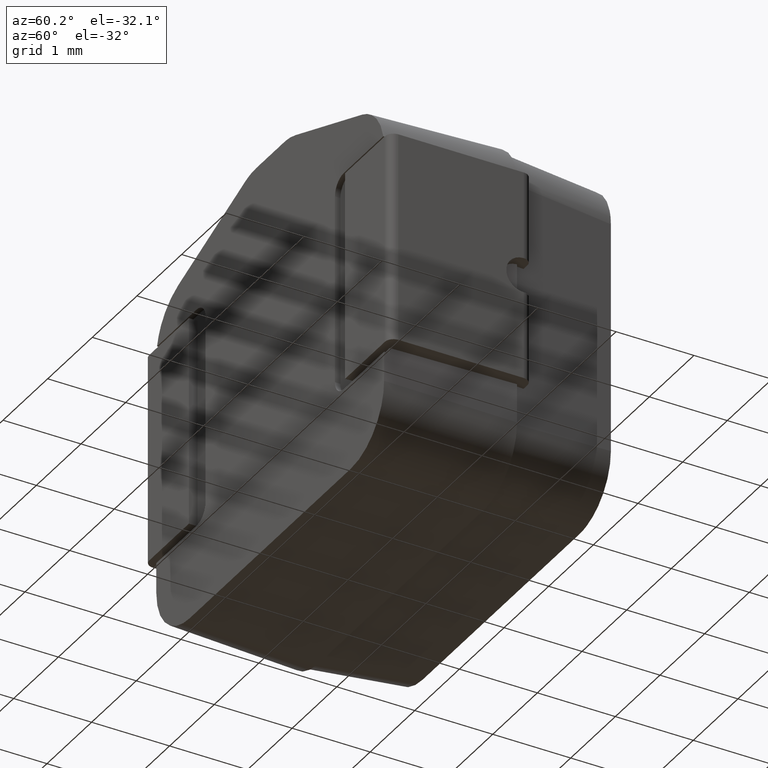
[diagram: clean part render]
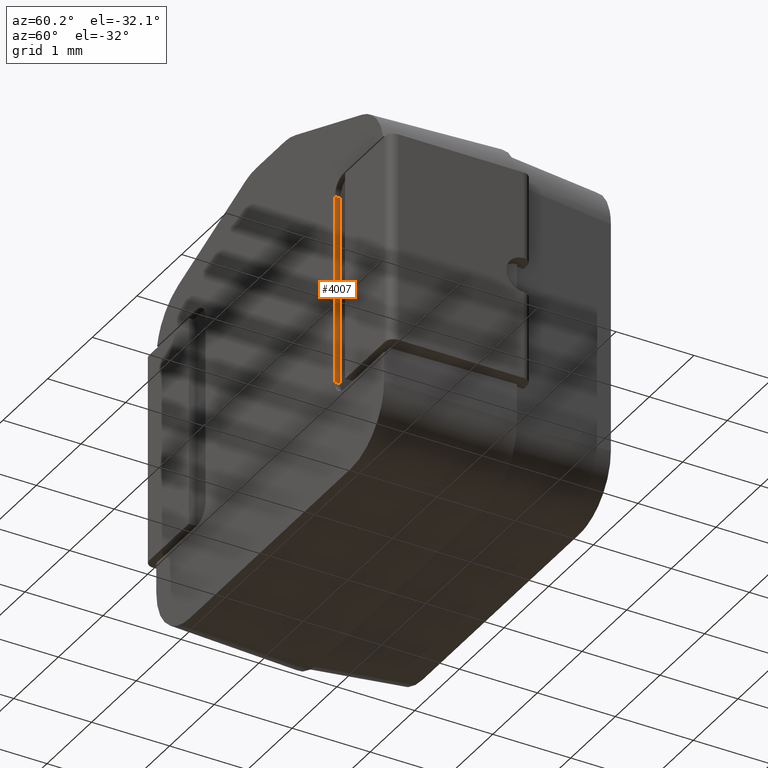
[diagram: same view with one face highlighted and labeled with its STEP entity id]
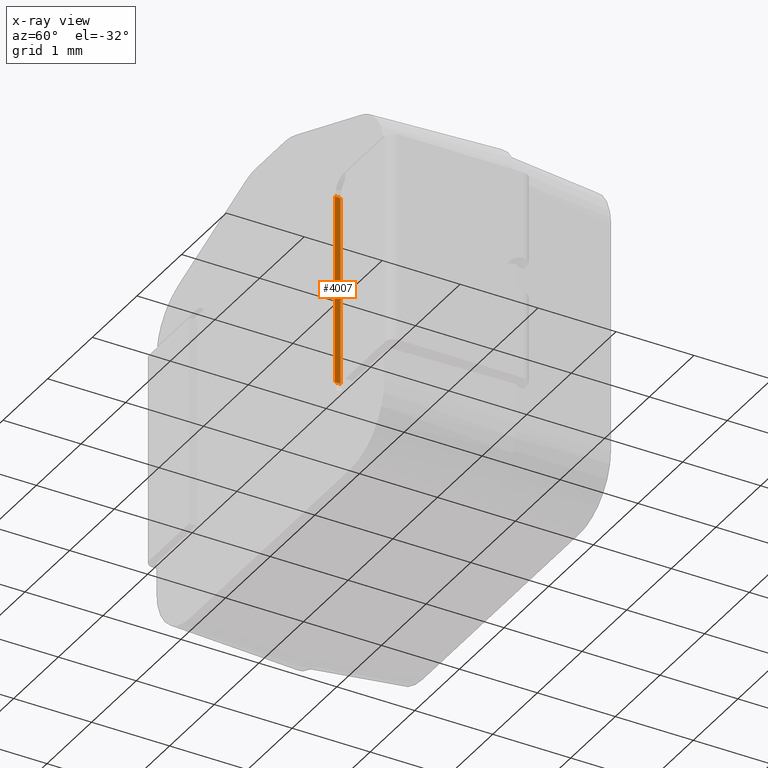
[diagram: x-ray of the same camera — body ghosted, the highlighted face saturated]
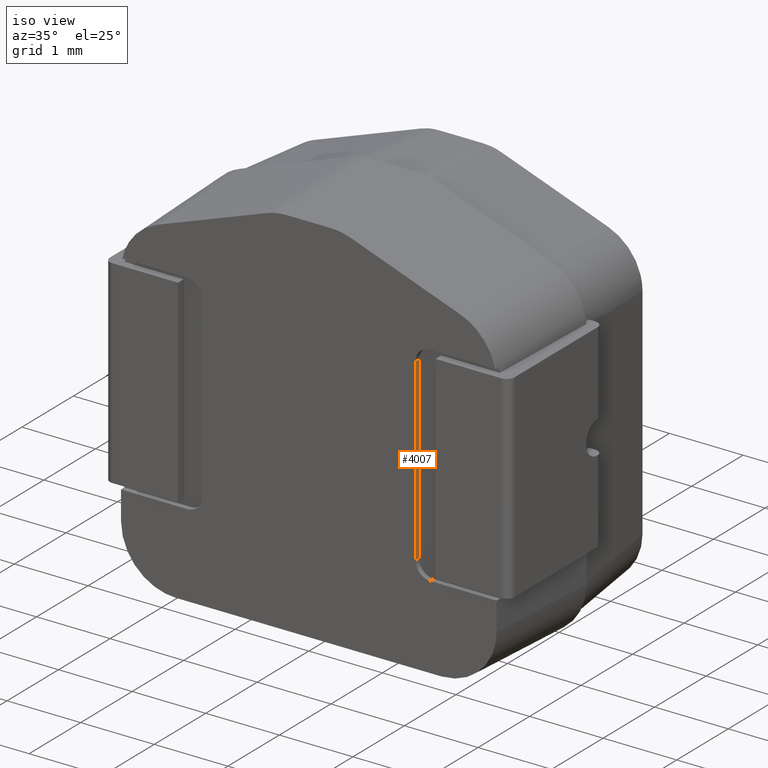
[diagram: same view with one face highlighted and labeled with its STEP entity id]
A machine part, auxiliary view. The second image highlights one B-rep face of the part: STEP entity #4007.
The next image is the same camera in x-ray: the body ghosted, the highlighted face saturated — about 0% of this face is hidden behind the body in this view.
A second angle (iso view) of the same face is appended — the face is thin or edge-on in the first view.
In plain terms, the highlighted planar face has unit normal (-1, 0, 0).
Its self-contained STEP definition (entity closure, byte-faithful):
#329 = DIRECTION ( 'NONE',  ( 1.527045313359865476E-16, 0.0000000000000000000, 1.000000000000000000 ) ) ;
#510 = LINE ( 'NONE', #4593, #5589 ) ;
#528 = LINE ( 'NONE', #1100, #5607 ) ;
#684 = VERTEX_POINT ( 'NONE', #1522 ) ;
#712 = ORIENTED_EDGE ( 'NONE', *, *, #1921, .T. ) ;
#986 = LINE ( 'NONE', #3184, #5217 ) ;
#1100 = CARTESIAN_POINT ( 'NONE',  ( 1.450000000000000400, 0.0000000000000000000, 1.219999999999999973 ) ) ;
#1167 = DIRECTION ( 'NONE',  ( -1.000000000000000000, 0.0000000000000000000, 1.527045313359865476E-16 ) ) ;
#1191 = ORIENTED_EDGE ( 'NONE', *, *, #4339, .F. ) ;
#1522 = CARTESIAN_POINT ( 'NONE',  ( 1.450000000000000400, 0.07000000000000000666, 1.219999999999999973 ) ) ;
#1691 = EDGE_CURVE ( 'NONE', #684, #5250, #528, .T. ) ;
#1758 = FACE_OUTER_BOUND ( 'NONE', #4564, .T. ) ;
#1921 = EDGE_CURVE ( 'NONE', #4919, #2553, #510, .T. ) ;
#2036 = DIRECTION ( 'NONE',  ( 1.527045313359865476E-16, 0.0000000000000000000, 1.000000000000000000 ) ) ;
#2133 = LINE ( 'NONE', #3381, #3181 ) ;
#2345 = ORIENTED_EDGE ( 'NONE', *, *, #4412, .T. ) ;
#2481 = PLANE ( 'NONE',  #3082 ) ;
#2553 = VERTEX_POINT ( 'NONE', #3820 ) ;
#3082 = AXIS2_PLACEMENT_3D ( 'NONE', #3867, #1167, #2036 ) ;
#3181 = VECTOR ( 'NONE', #4763, 1000.000000000000000 ) ;
#3184 = CARTESIAN_POINT ( 'NONE',  ( 1.449999999999999956, 0.07000000000000000666, -1.419999999999999929 ) ) ;
#3381 = CARTESIAN_POINT ( 'NONE',  ( 1.449999999999999956, 0.0000000000000000000, -1.419999999999999929 ) ) ;
#3461 = CARTESIAN_POINT ( 'NONE',  ( 1.450000000000000400, 0.0000000000000000000, 1.219999999999999973 ) ) ;
#3535 = CARTESIAN_POINT ( 'NONE',  ( 1.449999999999999956, 0.0000000000000000000, -1.219999999999999973 ) ) ;
#3667 = DIRECTION ( 'NONE',  ( 0.0000000000000000000, 1.000000000000000000, 0.0000000000000000000 ) ) ;
#3820 = CARTESIAN_POINT ( 'NONE',  ( 1.449999999999999956, 0.07000000000000000666, -1.219999999999999973 ) ) ;
#3867 = CARTESIAN_POINT ( 'NONE',  ( 1.449999999999999956, 0.0000000000000000000, -1.419999999999999929 ) ) ;
#4007 = ADVANCED_FACE ( 'NONE', ( #1758 ), #2481, .F. ) ;
#4144 = ORIENTED_EDGE ( 'NONE', *, *, #1691, .T. ) ;
#4339 = EDGE_CURVE ( 'NONE', #4919, #5250, #2133, .T. ) ;
#4412 = EDGE_CURVE ( 'NONE', #2553, #684, #986, .T. ) ;
#4564 = EDGE_LOOP ( 'NONE', ( #2345, #4144, #1191, #712 ) ) ;
#4593 = CARTESIAN_POINT ( 'NONE',  ( 1.449999999999999956, 0.07000000000000000666, -1.219999999999999973 ) ) ;
#4763 = DIRECTION ( 'NONE',  ( 1.527045313359865476E-16, 0.0000000000000000000, 1.000000000000000000 ) ) ;
#4919 = VERTEX_POINT ( 'NONE', #3535 ) ;
#5217 = VECTOR ( 'NONE', #329, 1000.000000000000000 ) ;
#5250 = VERTEX_POINT ( 'NONE', #3461 ) ;
#5578 = DIRECTION ( 'NONE',  ( -0.0000000000000000000, -1.000000000000000000, -0.0000000000000000000 ) ) ;
#5589 = VECTOR ( 'NONE', #3667, 1000.000000000000000 ) ;
#5607 = VECTOR ( 'NONE', #5578, 1000.000000000000000 ) ;